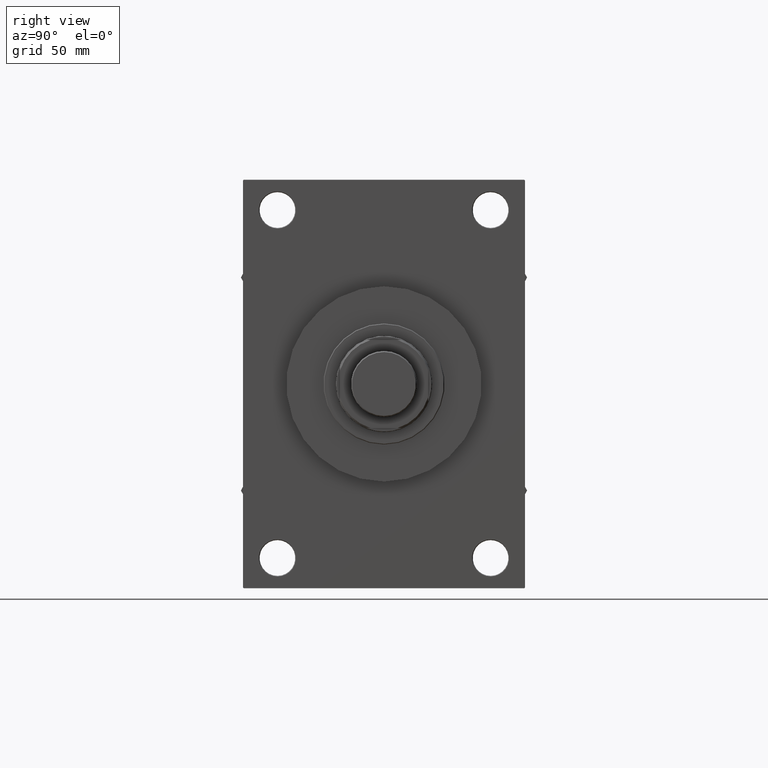
[diagram: clean part render]
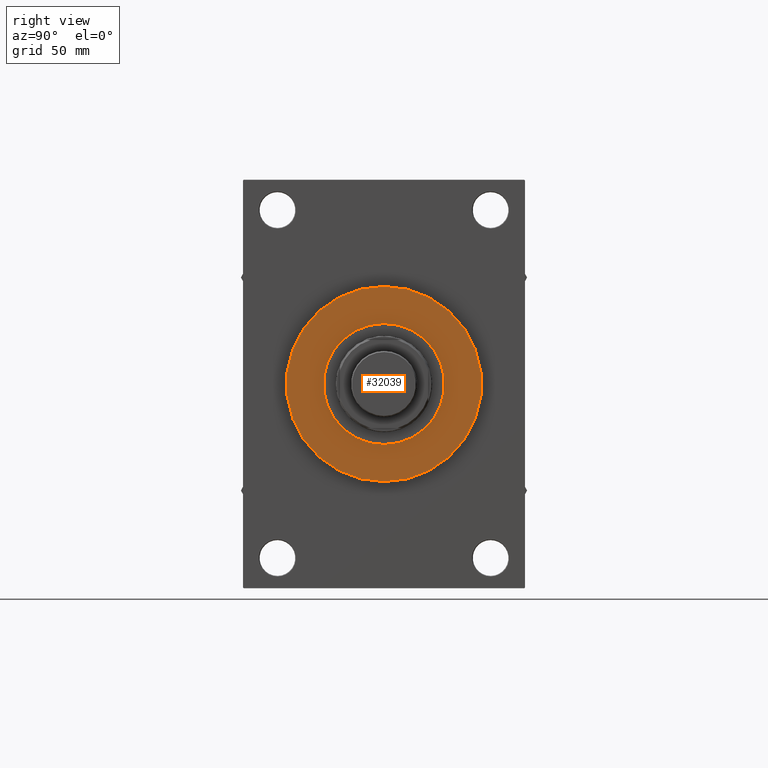
[diagram: same view with one face highlighted and labeled with its STEP entity id]
A machine part, right view. The second image highlights one B-rep face of the part: STEP entity #32039.
In plain terms, the highlighted planar face has unit normal (1, -0, -0).
Its self-contained STEP definition (entity closure, byte-faithful):
#1306 = VERTEX_POINT ( 'NONE', #44185 ) ;
#1561 = CARTESIAN_POINT ( 'NONE',  ( 0.000000000000000000, 0.000000000000000000, 43.25999999999999801 ) ) ;
#1846 = EDGE_CURVE ( 'NONE', #44216, #36404, #26334, .T. ) ;
#2039 = PLANE ( 'NONE',  #4058 ) ;
#3430 = CIRCLE ( 'NONE', #13652, 71.00000000000001421 ) ;
#4058 = AXIS2_PLACEMENT_3D ( 'NONE', #1561, #16184, #24447 ) ;
#4060 = CARTESIAN_POINT ( 'NONE',  ( -44.00000000000000000, 0.000000000000000000, 43.25999999999999801 ) ) ;
#5031 = EDGE_LOOP ( 'NONE', ( #42660, #17894 ) ) ;
#5461 = FACE_OUTER_BOUND ( 'NONE', #24945, .T. ) ;
#6534 = DIRECTION ( 'NONE',  ( 0.000000000000000000, 0.000000000000000000, 1.000000000000000000 ) ) ;
#10098 = ORIENTED_EDGE ( 'NONE', *, *, #24199, .T. ) ;
#10232 = DIRECTION ( 'NONE',  ( 1.000000000000000000, 0.000000000000000000, 0.000000000000000000 ) ) ;
#11257 = CIRCLE ( 'NONE', #43912, 71.00000000000001421 ) ;
#13652 = AXIS2_PLACEMENT_3D ( 'NONE', #25044, #6534, #28955 ) ;
#14694 = CARTESIAN_POINT ( 'NONE',  ( -71.00000000000001421, 0.000000000000000000, 43.25999999999999801 ) ) ;
#16184 = DIRECTION ( 'NONE',  ( 0.000000000000000000, 0.000000000000000000, 1.000000000000000000 ) ) ;
#16664 = FACE_BOUND ( 'NONE', #5031, .T. ) ;
#17894 = ORIENTED_EDGE ( 'NONE', *, *, #1846, .F. ) ;
#20254 = DIRECTION ( 'NONE',  ( 1.000000000000000000, 0.000000000000000000, 0.000000000000000000 ) ) ;
#20962 = CARTESIAN_POINT ( 'NONE',  ( 0.000000000000000000, 0.000000000000000000, 43.25999999999999801 ) ) ;
#21668 = DIRECTION ( 'NONE',  ( 0.000000000000000000, 0.000000000000000000, 1.000000000000000000 ) ) ;
#22177 = DIRECTION ( 'NONE',  ( 0.000000000000000000, 0.000000000000000000, 1.000000000000000000 ) ) ;
#23592 = EDGE_CURVE ( 'NONE', #26592, #1306, #3430, .T. ) ;
#24199 = EDGE_CURVE ( 'NONE', #1306, #26592, #11257, .T. ) ;
#24447 = DIRECTION ( 'NONE',  ( 1.000000000000000000, 0.000000000000000000, -0.000000000000000000 ) ) ;
#24945 = EDGE_LOOP ( 'NONE', ( #35820, #10098 ) ) ;
#25044 = CARTESIAN_POINT ( 'NONE',  ( 0.000000000000000000, 0.000000000000000000, 43.25999999999999801 ) ) ;
#25334 = CARTESIAN_POINT ( 'NONE',  ( 0.000000000000000000, 0.000000000000000000, 43.25999999999999801 ) ) ;
#26300 = AXIS2_PLACEMENT_3D ( 'NONE', #20962, #35581, #20254 ) ;
#26334 = CIRCLE ( 'NONE', #26300, 44.00000000000000000 ) ;
#26592 = VERTEX_POINT ( 'NONE', #14694 ) ;
#26700 = CIRCLE ( 'NONE', #38382, 44.00000000000000000 ) ;
#28955 = DIRECTION ( 'NONE',  ( 1.000000000000000000, 0.000000000000000000, 0.000000000000000000 ) ) ;
#29504 = CARTESIAN_POINT ( 'NONE',  ( 0.000000000000000000, 0.000000000000000000, 43.25999999999999801 ) ) ;
#32039 = ADVANCED_FACE ( 'NONE', ( #16664, #5461 ), #2039, .T. ) ;
#35581 = DIRECTION ( 'NONE',  ( 0.000000000000000000, 0.000000000000000000, 1.000000000000000000 ) ) ;
#35820 = ORIENTED_EDGE ( 'NONE', *, *, #23592, .T. ) ;
#35878 = EDGE_CURVE ( 'NONE', #36404, #44216, #26700, .T. ) ;
#36404 = VERTEX_POINT ( 'NONE', #4060 ) ;
#38382 = AXIS2_PLACEMENT_3D ( 'NONE', #25334, #21668, #10232 ) ;
#40180 = DIRECTION ( 'NONE',  ( 1.000000000000000000, 0.000000000000000000, 0.000000000000000000 ) ) ;
#42660 = ORIENTED_EDGE ( 'NONE', *, *, #35878, .F. ) ;
#43912 = AXIS2_PLACEMENT_3D ( 'NONE', #29504, #22177, #40180 ) ;
#44185 = CARTESIAN_POINT ( 'NONE',  ( 71.00000000000001421, 8.694992273946208141E-15, 43.25999999999999801 ) ) ;
#44216 = VERTEX_POINT ( 'NONE', #46849 ) ;
#46849 = CARTESIAN_POINT ( 'NONE',  ( 44.00000000000000000, 5.388445916248353619E-15, 43.25999999999999801 ) ) ;